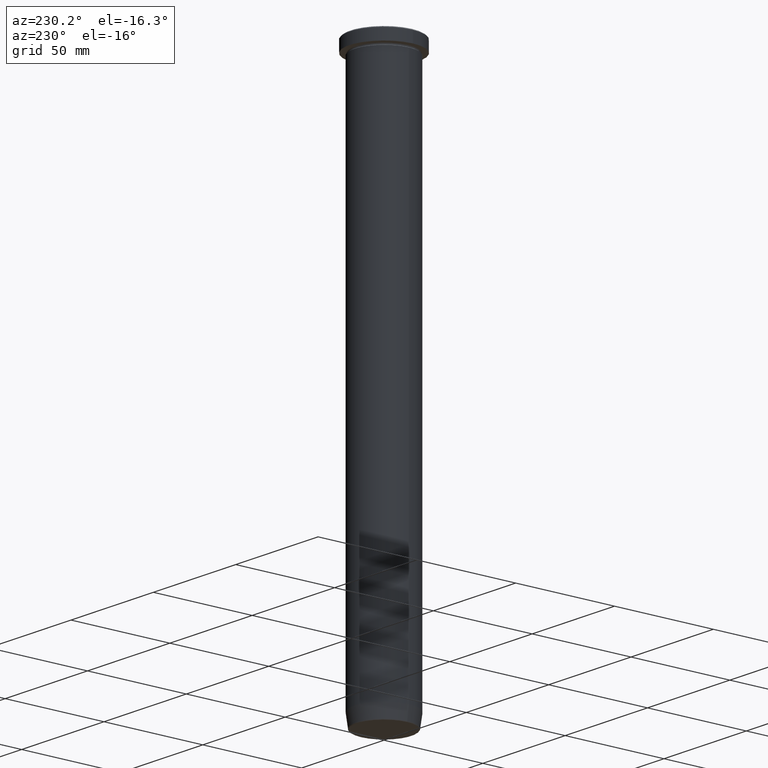
[diagram: clean part render]
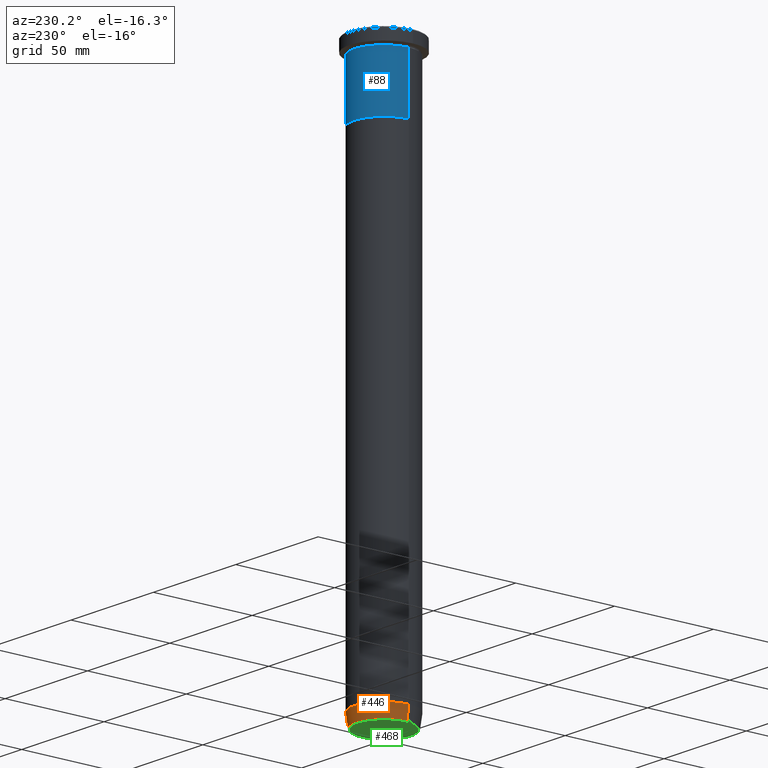
[diagram: same view with three faces highlighted in distinct colors, each labeled with its STEP entity id]
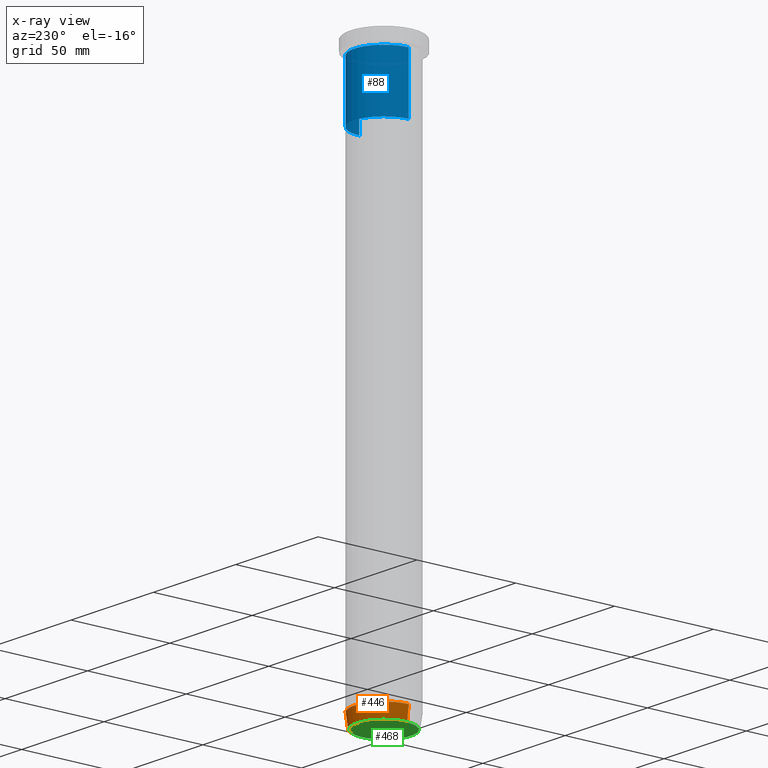
[diagram: x-ray of the same camera — body ghosted, the three highlighted faces saturated]
A machine part, auxiliary view with three faces highlighted in distinct colors.
The next image is the same camera in x-ray (body ghosted, the three faces saturated) — at least one of them is partly hidden behind the body in this view.
Their STEP definitions:

[orange] entity #446 — the highlighted conical surface has half-angle 8 deg.
#6 = LINE ( 'NONE', #207, #475 ) ;
#14 = DIRECTION ( 'NONE',  ( 1.000000000000000000, 0.000000000000000000, 0.000000000000000000 ) ) ;
#59 = AXIS2_PLACEMENT_3D ( 'NONE', #267, #309, #63 ) ;
#63 = DIRECTION ( 'NONE',  ( 1.000000000000000000, 0.000000000000000000, 0.000000000000000000 ) ) ;
#68 = FACE_OUTER_BOUND ( 'NONE', #179, .T. ) ;
#71 = CARTESIAN_POINT ( 'NONE',  ( -15.00000000000000000, 1.836970198721029589E-15, -272.9999999999999432 ) ) ;
#75 = CONICAL_SURFACE ( 'NONE', #250, 14.01621415708325280, 0.1396263401595470577 ) ;
#85 = VERTEX_POINT ( 'NONE', #342 ) ;
#109 = VERTEX_POINT ( 'NONE', #122 ) ;
#122 = CARTESIAN_POINT ( 'NONE',  ( 14.07670482254592592, 0.000000000000000000, -279.5695865504799826 ) ) ;
#165 = ORIENTED_EDGE ( 'NONE', *, *, #293, .T. ) ;
#179 = EDGE_LOOP ( 'NONE', ( #165, #225, #205, #235 ) ) ;
#205 = ORIENTED_EDGE ( 'NONE', *, *, #206, .F. ) ;
#206 = EDGE_CURVE ( 'NONE', #401, #264, #239, .T. ) ;
#207 = CARTESIAN_POINT ( 'NONE',  ( 14.01621415708325280, 0.000000000000000000, -279.9999999999999432 ) ) ;
#225 = ORIENTED_EDGE ( 'NONE', *, *, #568, .T. ) ;
#233 = LINE ( 'NONE', #323, #473 ) ;
#235 = ORIENTED_EDGE ( 'NONE', *, *, #404, .F. ) ;
#239 = CIRCLE ( 'NONE', #59, 15.00000000000000000 ) ;
#250 = AXIS2_PLACEMENT_3D ( 'NONE', #272, #398, #14 ) ;
#264 = VERTEX_POINT ( 'NONE', #71 ) ;
#267 = CARTESIAN_POINT ( 'NONE',  ( 0.000000000000000000, 0.000000000000000000, -272.9999999999999432 ) ) ;
#272 = CARTESIAN_POINT ( 'NONE',  ( 0.000000000000000000, 0.000000000000000000, -279.9999999999999432 ) ) ;
#274 = DIRECTION ( 'NONE',  ( -0.000000000000000000, -0.000000000000000000, 1.000000000000000000 ) ) ;
#293 = EDGE_CURVE ( 'NONE', #109, #85, #410, .T. ) ;
#309 = DIRECTION ( 'NONE',  ( -0.000000000000000000, -0.000000000000000000, 1.000000000000000000 ) ) ;
#323 = CARTESIAN_POINT ( 'NONE',  ( -14.01621415708325280, 1.716491180363582438E-15, -279.9999999999999432 ) ) ;
#342 = CARTESIAN_POINT ( 'NONE',  ( -14.07670482254592592, 1.780434674534163799E-15, -279.5695865504799826 ) ) ;
#380 = CARTESIAN_POINT ( 'NONE',  ( 15.00000000000000000, 0.000000000000000000, -272.9999999999999432 ) ) ;
#386 = AXIS2_PLACEMENT_3D ( 'NONE', #488, #274, #533 ) ;
#398 = DIRECTION ( 'NONE',  ( -0.000000000000000000, -0.000000000000000000, 1.000000000000000000 ) ) ;
#401 = VERTEX_POINT ( 'NONE', #380 ) ;
#404 = EDGE_CURVE ( 'NONE', #109, #401, #6, .T. ) ;
#410 = CIRCLE ( 'NONE', #386, 14.07670482254592592 ) ;
#446 = ADVANCED_FACE ( 'NONE', ( #68 ), #75, .T. ) ;
#473 = VECTOR ( 'NONE', #490, 1000.000000000000000 ) ;
#475 = VECTOR ( 'NONE', #513, 1000.000000000000000 ) ;
#488 = CARTESIAN_POINT ( 'NONE',  ( 0.000000000000000000, 0.000000000000000000, -279.5695865504799826 ) ) ;
#490 = DIRECTION ( 'NONE',  ( -0.1391731009600661317, 1.704378926181564302E-17, 0.9902680687415702510 ) ) ;
#513 = DIRECTION ( 'NONE',  ( 0.1391731009600661317, 0.000000000000000000, 0.9902680687415702510 ) ) ;
#533 = DIRECTION ( 'NONE',  ( -1.000000000000000000, 0.000000000000000000, 0.000000000000000000 ) ) ;
#568 = EDGE_CURVE ( 'NONE', #85, #264, #233, .T. ) ;

[blue] entity #88 — the highlighted cylindrical surface (partial cylindrical patch) has radius 15 mm, axis along (-0, -0, 1).
#3 = VECTOR ( 'NONE', #555, 1000.000000000000000 ) ;
#24 = ORIENTED_EDGE ( 'NONE', *, *, #389, .T. ) ;
#58 = CARTESIAN_POINT ( 'NONE',  ( 0.000000000000000000, 0.000000000000000000, 0.000000000000000000 ) ) ;
#64 = VERTEX_POINT ( 'NONE', #416 ) ;
#76 = EDGE_CURVE ( 'NONE', #143, #64, #522, .T. ) ;
#88 = ADVANCED_FACE ( 'NONE', ( #383 ), #310, .T. ) ;
#95 = ORIENTED_EDGE ( 'NONE', *, *, #209, .T. ) ;
#106 = AXIS2_PLACEMENT_3D ( 'NONE', #58, #474, #151 ) ;
#134 = VERTEX_POINT ( 'NONE', #256 ) ;
#143 = VERTEX_POINT ( 'NONE', #211 ) ;
#144 = CARTESIAN_POINT ( 'NONE',  ( 15.00000000000000000, 0.000000000000000000, -36.00000000000000000 ) ) ;
#147 = DIRECTION ( 'NONE',  ( -0.000000000000000000, -0.000000000000000000, 1.000000000000000000 ) ) ;
#150 = LINE ( 'NONE', #204, #3 ) ;
#151 = DIRECTION ( 'NONE',  ( 1.000000000000000000, 0.000000000000000000, 0.000000000000000000 ) ) ;
#161 = CARTESIAN_POINT ( 'NONE',  ( 0.000000000000000000, 0.000000000000000000, -6.999999999999999112 ) ) ;
#162 = DIRECTION ( 'NONE',  ( -0.000000000000000000, -0.000000000000000000, 1.000000000000000000 ) ) ;
#204 = CARTESIAN_POINT ( 'NONE',  ( -15.00000000000000000, 1.836970198721029589E-15, 0.000000000000000000 ) ) ;
#209 = EDGE_CURVE ( 'NONE', #305, #134, #308, .T. ) ;
#211 = CARTESIAN_POINT ( 'NONE',  ( 15.00000000000000000, 0.000000000000000000, -6.999999999999999112 ) ) ;
#218 = EDGE_CURVE ( 'NONE', #305, #143, #445, .T. ) ;
#256 = CARTESIAN_POINT ( 'NONE',  ( -15.00000000000000000, 1.836970198721029589E-15, -36.00000000000000000 ) ) ;
#260 = AXIS2_PLACEMENT_3D ( 'NONE', #161, #147, #519 ) ;
#271 = VECTOR ( 'NONE', #581, 1000.000000000000000 ) ;
#303 = ORIENTED_EDGE ( 'NONE', *, *, #218, .F. ) ;
#305 = VERTEX_POINT ( 'NONE', #144 ) ;
#308 = CIRCLE ( 'NONE', #454, 15.00000000000000000 ) ;
#310 = CYLINDRICAL_SURFACE ( 'NONE', #106, 15.00000000000000000 ) ;
#383 = FACE_OUTER_BOUND ( 'NONE', #487, .T. ) ;
#389 = EDGE_CURVE ( 'NONE', #134, #64, #150, .T. ) ;
#416 = CARTESIAN_POINT ( 'NONE',  ( -15.00000000000000000, 1.836970198721029589E-15, -6.999999999999999112 ) ) ;
#436 = CARTESIAN_POINT ( 'NONE',  ( 0.000000000000000000, 0.000000000000000000, -36.00000000000000000 ) ) ;
#445 = LINE ( 'NONE', #451, #271 ) ;
#451 = CARTESIAN_POINT ( 'NONE',  ( 15.00000000000000000, 0.000000000000000000, 0.000000000000000000 ) ) ;
#454 = AXIS2_PLACEMENT_3D ( 'NONE', #436, #162, #483 ) ;
#474 = DIRECTION ( 'NONE',  ( -0.000000000000000000, -0.000000000000000000, 1.000000000000000000 ) ) ;
#483 = DIRECTION ( 'NONE',  ( 1.000000000000000000, 0.000000000000000000, 0.000000000000000000 ) ) ;
#487 = EDGE_LOOP ( 'NONE', ( #95, #24, #532, #303 ) ) ;
#519 = DIRECTION ( 'NONE',  ( 1.000000000000000000, 0.000000000000000000, 0.000000000000000000 ) ) ;
#522 = CIRCLE ( 'NONE', #260, 15.00000000000000000 ) ;
#532 = ORIENTED_EDGE ( 'NONE', *, *, #76, .F. ) ;
#555 = DIRECTION ( 'NONE',  ( -0.000000000000000000, -0.000000000000000000, 1.000000000000000000 ) ) ;
#581 = DIRECTION ( 'NONE',  ( -0.000000000000000000, -0.000000000000000000, 1.000000000000000000 ) ) ;

[green] entity #468 — the highlighted planar face has unit normal (0, -0, 1).
#126 = DIRECTION ( 'NONE',  ( 0.000000000000000000, 0.000000000000000000, -1.000000000000000000 ) ) ;
#156 = DIRECTION ( 'NONE',  ( 0.000000000000000000, -0.000000000000000000, 1.000000000000000000 ) ) ;
#158 = CARTESIAN_POINT ( 'NONE',  ( 0.000000000000000000, 0.000000000000000000, -279.9999999999999432 ) ) ;
#176 = PLANE ( 'NONE',  #259 ) ;
#195 = DIRECTION ( 'NONE',  ( 1.000000000000000000, 0.000000000000000000, 0.000000000000000000 ) ) ;
#220 = EDGE_LOOP ( 'NONE', ( #479, #248 ) ) ;
#221 = VERTEX_POINT ( 'NONE', #361 ) ;
#236 = VERTEX_POINT ( 'NONE', #330 ) ;
#248 = ORIENTED_EDGE ( 'NONE', *, *, #370, .T. ) ;
#259 = AXIS2_PLACEMENT_3D ( 'NONE', #526, #156, #411 ) ;
#277 = FACE_OUTER_BOUND ( 'NONE', #220, .T. ) ;
#330 = CARTESIAN_POINT ( 'NONE',  ( 13.58157078817513508, 0.000000000000000000, -279.9999999999999432 ) ) ;
#361 = CARTESIAN_POINT ( 'NONE',  ( -13.58157078817513508, 1.693580934830242487E-15, -279.9999999999999432 ) ) ;
#370 = EDGE_CURVE ( 'NONE', #221, #236, #499, .T. ) ;
#405 = CARTESIAN_POINT ( 'NONE',  ( 0.000000000000000000, 0.000000000000000000, -279.9999999999999432 ) ) ;
#411 = DIRECTION ( 'NONE',  ( 1.000000000000000000, 0.000000000000000000, 0.000000000000000000 ) ) ;
#428 = DIRECTION ( 'NONE',  ( 1.000000000000000000, 0.000000000000000000, 0.000000000000000000 ) ) ;
#463 = DIRECTION ( 'NONE',  ( 0.000000000000000000, 0.000000000000000000, -1.000000000000000000 ) ) ;
#468 = ADVANCED_FACE ( 'NONE', ( #277 ), #176, .F. ) ;
#479 = ORIENTED_EDGE ( 'NONE', *, *, #535, .T. ) ;
#494 = AXIS2_PLACEMENT_3D ( 'NONE', #405, #126, #195 ) ;
#499 = CIRCLE ( 'NONE', #505, 13.58157078817513508 ) ;
#505 = AXIS2_PLACEMENT_3D ( 'NONE', #158, #463, #428 ) ;
#526 = CARTESIAN_POINT ( 'NONE',  ( 0.000000000000000000, 2.449293598294705803E-14, -279.9999999999999432 ) ) ;
#535 = EDGE_CURVE ( 'NONE', #236, #221, #543, .T. ) ;
#543 = CIRCLE ( 'NONE', #494, 13.58157078817513508 ) ;